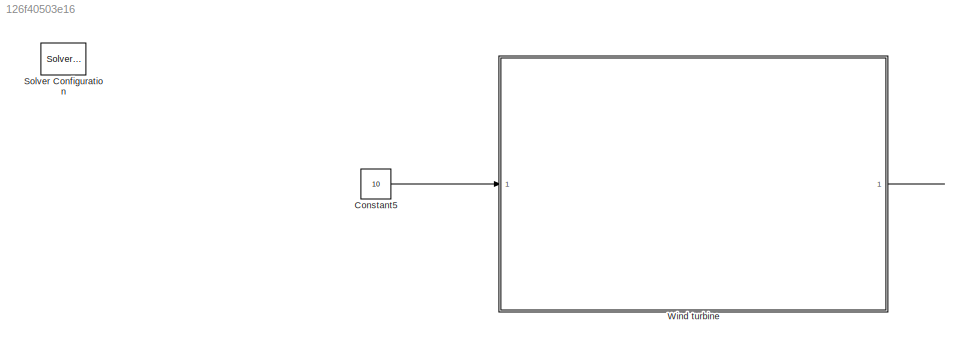
MODEL slx_126f40503e16
KIND model
CONFIG AbsTol = auto
CONFIG EnableMultiTasking = off
CONFIG FixedStep = auto
CONFIG MaxStep = 0.002
CONFIG MinStep = auto
CONFIG RelTol = 1e-3
CONFIG SampleTimeConstraint = Unconstrained
CONFIG SolverName = ode23t
CONFIG StartTime = 0
CONFIG StopTime = 20
BLOCK [Constant] Constant5
  Value = 10
BLOCK [Reference] Solver Configuration  REF=nesl_utility/Solver
Configuration
  NameLocation = top
  SourceBlock = nesl_utility/Solver\nConfiguration
  SourceType = Solver\nConfiguration
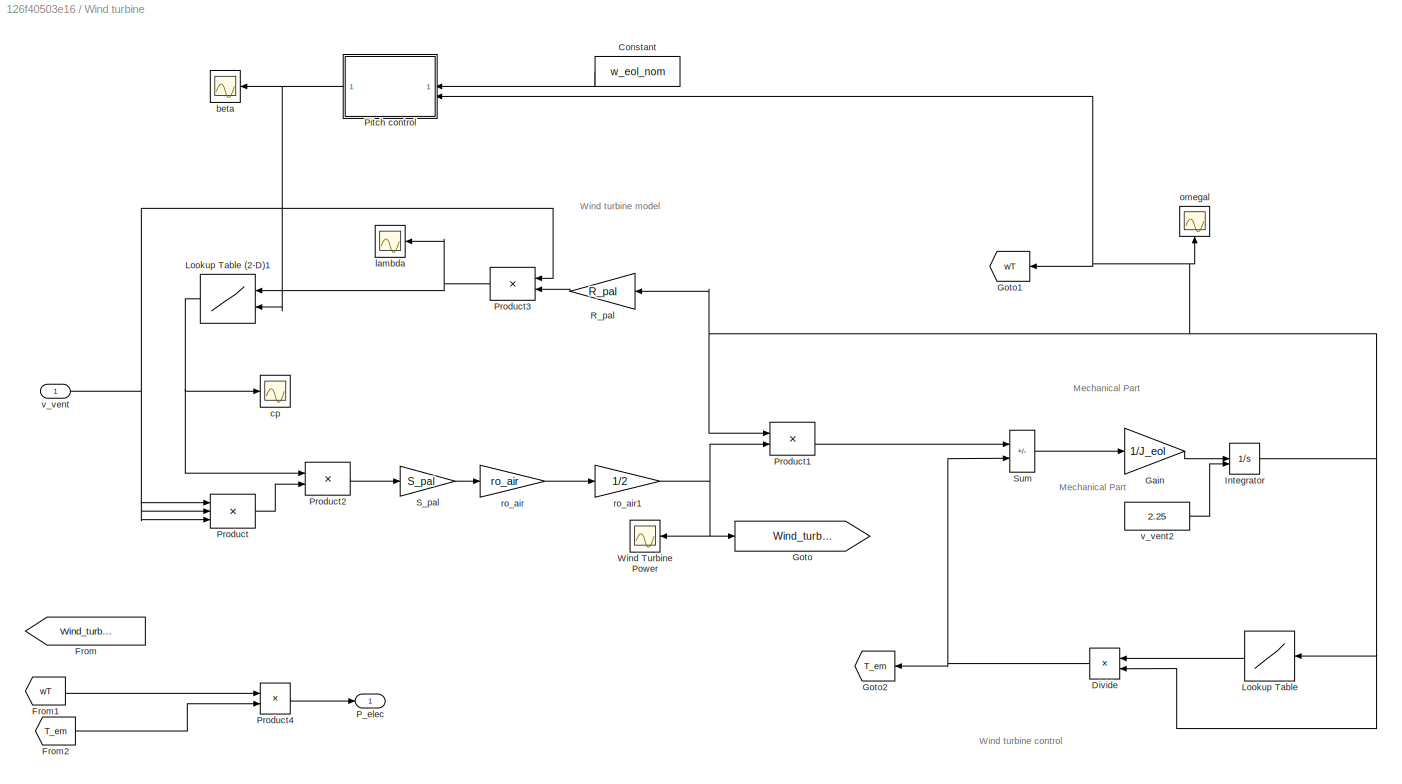
BLOCK [SubSystem] Wind turbine
BLOCK [Constant] Wind turbine/Constant
  Value = w_eol_nom
BLOCK [Product] Wind turbine/Divide
  InputSameDT = on
  Inputs = */
  OutDataTypeStr = Inherit: Same as first input
  RndMeth = Zero
BLOCK [From] Wind turbine/From
  CloseFcn = tagdialog Close
  GotoTag = Wind_turbine_Power
BLOCK [From] Wind turbine/From1
  CloseFcn = tagdialog Close
  GotoTag = wT
BLOCK [From] Wind turbine/From2
  CloseFcn = tagdialog Close
  GotoTag = T_em
BLOCK [Gain] Wind turbine/Gain
  Gain = 1/J_eol
  OutDataTypeStr = Inherit: Same as input
  ParamDataTypeStr = Inherit: Same as input
  SaturateOnIntegerOverflow = on
BLOCK [Goto] Wind turbine/Goto
  GotoTag = Wind_turbine_Power
BLOCK [Goto] Wind turbine/Goto1
  GotoTag = wT
BLOCK [Goto] Wind turbine/Goto2
  GotoTag = T_em
BLOCK [Integrator] Wind turbine/Integrator
  InitialConditionSource = external
BLOCK [Lookup] Wind turbine/Lookup Table
  InputValues = omega_tab
  Table = P_opt_tab2
BLOCK [Lookup2D] Wind turbine/Lookup Table (2-D)1
  ColumnIndex = beta_ref
  RowIndex = lambda_ref
  Table = Cp_ref
BLOCK [Outport] Wind turbine/P_elec
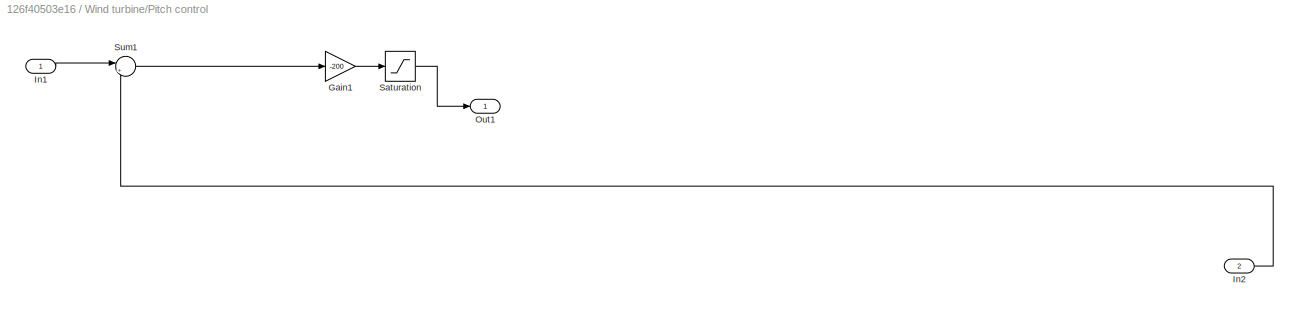
BLOCK [SubSystem] Wind turbine/Pitch control
BLOCK [Gain] Wind turbine/Pitch control/Gain1
  Gain = -200
BLOCK [Inport] Wind turbine/Pitch control/In1
BLOCK [Inport] Wind turbine/Pitch control/In2
  Port = 2
BLOCK [Outport] Wind turbine/Pitch control/Out1
BLOCK [Saturate] Wind turbine/Pitch control/Saturation
  LowerLimit = 0
  UpperLimit = inf
BLOCK [Sum] Wind turbine/Pitch control/Sum1
  Inputs = |+-
BLOCK [Product] Wind turbine/Product
  InputSameDT = on
  Inputs = 3
  OutDataTypeStr = Inherit: Same as first input
  RndMeth = Zero
  SaturateOnIntegerOverflow = on
BLOCK [Product] Wind turbine/Product1
  InputSameDT = on
  Inputs = /*
  OutDataTypeStr = Inherit: Same as first input
  RndMeth = Zero
  SaturateOnIntegerOverflow = on
BLOCK [Product] Wind turbine/Product2
  InputSameDT = on
  OutDataTypeStr = Inherit: Same as first input
  RndMeth = Zero
  SaturateOnIntegerOverflow = on
BLOCK [Product] Wind turbine/Product3
  InputSameDT = on
  Inputs = /*
  OutDataTypeStr = Inherit: Same as first input
  RndMeth = Zero
  SaturateOnIntegerOverflow = on
BLOCK [Product] Wind turbine/Product4
BLOCK [Gain] Wind turbine/R_pal
  Gain = R_pal
  OutDataTypeStr = Inherit: Same as input
  ParamDataTypeStr = Inherit: Same as input
  SaturateOnIntegerOverflow = on
BLOCK [Gain] Wind turbine/S_pal
  Gain = S_pal
  OutDataTypeStr = Inherit: Same as input
  ParamDataTypeStr = Inherit: Same as input
  SaturateOnIntegerOverflow = on
BLOCK [Sum] Wind turbine/Sum
  IconShape = rectangular
  InputSameDT = on
  Inputs = +-
  OutDataTypeStr = Inherit: Same as first input
  SaturateOnIntegerOverflow = on
BLOCK [Scope] Wind turbine/Wind Turbine Power
  Floating = off
  NameLocation = left
  NumInputPorts = 1
  ScopeSpecificationString = Simulink.scopes.TimeScopeBlockCfg('CurrentConfiguration', extmgr.ConfigurationSet(extmgr.Configuration('Core','General UI',true),extmgr.Configuration('Core','Source UI',true),extmgr.Configuration('Sources','WiredSimulink',true,'DataLoggingVariableName','ScopeData3'),extmgr.Configuration('Visuals','Time Domain',true,'SerializedDisplays',{struct('MinYLimReal','8318.13591','MaxYLimReal','263665.12868...<+1396ch>
BLOCK [Scope] Wind turbine/beta
  Floating = off
  NumInputPorts = 1
  ScopeSpecificationString = Simulink.scopes.TimeScopeBlockCfg('CurrentConfiguration', extmgr.ConfigurationSet(extmgr.Configuration('Core','General UI',true),extmgr.Configuration('Core','Source UI',true),extmgr.Configuration('Sources','WiredSimulink',true,'DataLoggingVariableName','ScopeData4'),extmgr.Configuration('Visuals','Time Domain',true,'SerializedDisplays',{struct('MinYLimReal','-1.40555','MaxYLimReal','12.64997','YLa...<+1409ch>
BLOCK [Scope] Wind turbine/cp
  Floating = off
  NumInputPorts = 1
  ScopeSpecificationString = Simulink.scopes.TimeScopeBlockCfg('CurrentConfiguration', extmgr.ConfigurationSet(extmgr.Configuration('Core','General UI',true),extmgr.Configuration('Core','Source UI',true),extmgr.Configuration('Sources','WiredSimulink',true,'DataLoggingVariableName','ScopeData1','DataLoggingSaveFormat','StructureWithTime','DataLoggingDecimation','1','DataLoggingDecimateData',true),extmgr.Configuration('Visuals'...<+1723ch>
BLOCK [Scope] Wind turbine/lambda
  Floating = off
  NumInputPorts = 1
  ScopeSpecificationString = Simulink.scopes.TimeScopeBlockCfg('CurrentConfiguration', extmgr.ConfigurationSet(extmgr.Configuration('Core','General UI',true),extmgr.Configuration('Core','Source UI',true),extmgr.Configuration('Sources','WiredSimulink',true,'DataLoggingVariableName','ScopeData2','DataLoggingSaveFormat','StructureWithTime','DataLoggingDecimation','1','DataLoggingDecimateData',true),extmgr.Configuration('Visuals'...<+1704ch>
BLOCK [Scope] Wind turbine/omegal  
  Floating = off
  NameLocation = left
  NumInputPorts = 1
  ScopeSpecificationString = Simulink.scopes.TimeScopeBlockCfg('CurrentConfiguration', extmgr.ConfigurationSet(extmgr.Configuration('Core','General UI',true),extmgr.Configuration('Core','Source UI',true),extmgr.Configuration('Sources','WiredSimulink',true,'DataLogging',true,'DataLoggingVariableName','omega_pal','DataLoggingSaveFormat','Array','DataLoggingMaxPoints','2000','DataLoggingDecimation','1','DataLoggingDecimateData',...<+1780ch>
BLOCK [Gain] Wind turbine/ro_air
  Gain = ro_air
  OutDataTypeStr = Inherit: Same as input
  ParamDataTypeStr = Inherit: Same as input
  SaturateOnIntegerOverflow = on
BLOCK [Gain] Wind turbine/ro_air1
  Gain = 1/2
  OutDataTypeStr = Inherit: Same as input
  ParamDataTypeStr = Inherit: Same as input
  SaturateOnIntegerOverflow = on
BLOCK [Inport] Wind turbine/v_vent
BLOCK [Constant] Wind turbine/v_vent2
  Value = 2.25
ANNOTATION Wind turbine: Mechanical Part
ANNOTATION Wind turbine: Wind turbine control
ANNOTATION Wind turbine: Wind turbine model
LINE Constant5:1 -> Wind turbine:1
LINE Wind turbine/Constant:1 -> Wind turbine/Pitch control:1
NET Wind turbine/Divide:1 -> Wind turbine/Goto2:1, Wind turbine/Sum:2
LINE Wind turbine/From1:1 -> Wind turbine/Product4:1
LINE Wind turbine/From2:1 -> Wind turbine/Product4:2
LINE Wind turbine/Gain:1 -> Wind turbine/Integrator:1
NET Wind turbine/Integrator:1 -> Wind turbine/Divide:2, Wind turbine/Goto1:1, Wind turbine/Lookup Table:1, Wind turbine/Pitch control:2, Wind turbine/Product1:1, Wind turbine/R_pal:1, Wind turbine/omegal  :1
NET Wind turbine/Lookup Table (2-D)1:1 -> Wind turbine/Product2:1, Wind turbine/cp:1
LINE Wind turbine/Lookup Table:1 -> Wind turbine/Divide:1
LINE Wind turbine/Pitch control/Gain1:1 -> Wind turbine/Pitch control/Saturation:1
LINE Wind turbine/Pitch control/In1:1 -> Wind turbine/Pitch control/Sum1:1
LINE Wind turbine/Pitch control/In2:1 -> Wind turbine/Pitch control/Sum1:2
LINE Wind turbine/Pitch control/Saturation:1 -> Wind turbine/Pitch control/Out1:1
LINE Wind turbine/Pitch control/Sum1:1 -> Wind turbine/Pitch control/Gain1:1
NET Wind turbine/Pitch control:1 -> Wind turbine/Lookup Table (2-D)1:2, Wind turbine/beta:1
LINE Wind turbine/Product1:1 -> Wind turbine/Sum:1
LINE Wind turbine/Product2:1 -> Wind turbine/S_pal:1
NET Wind turbine/Product3:1 -> Wind turbine/Lookup Table (2-D)1:1, Wind turbine/lambda:1
LINE Wind turbine/Product4:1 -> Wind turbine/P_elec:1
LINE Wind turbine/Product:1 -> Wind turbine/Product2:2
LINE Wind turbine/R_pal:1 -> Wind turbine/Product3:2
LINE Wind turbine/S_pal:1 -> Wind turbine/ro_air:1
LINE Wind turbine/Sum:1 -> Wind turbine/Gain:1
NET Wind turbine/ro_air1:1 -> Wind turbine/Goto:1, Wind turbine/Product1:2, Wind turbine/Wind Turbine Power:1
LINE Wind turbine/ro_air:1 -> Wind turbine/ro_air1:1
LINE Wind turbine/v_vent2:1 -> Wind turbine/Integrator:2
NET Wind turbine/v_vent:1 -> Wind turbine/Product3:1, Wind turbine/Product:1, Wind turbine/Product:2, Wind turbine/Product:3
note: NET lines group one-source signal fan-out (src -> all destinations, sorted); 1:1 wires keep LINE
